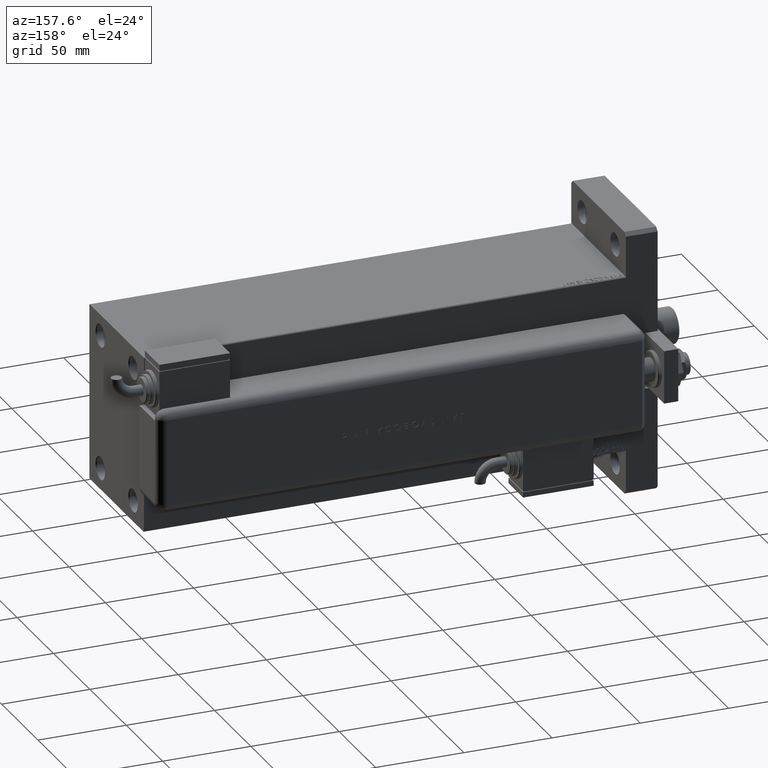
[diagram: clean part render]
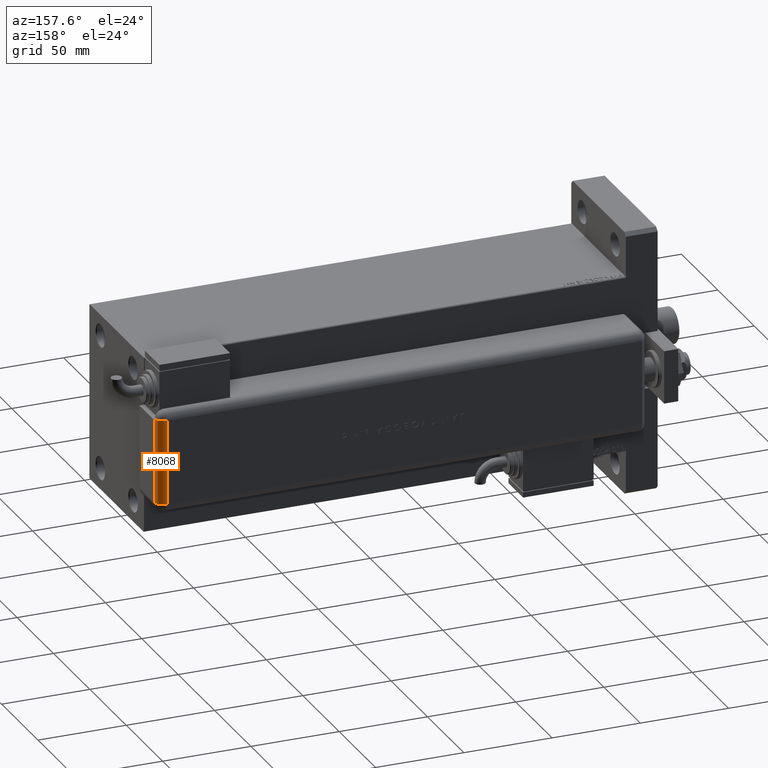
[diagram: same view with one face highlighted and labeled with its STEP entity id]
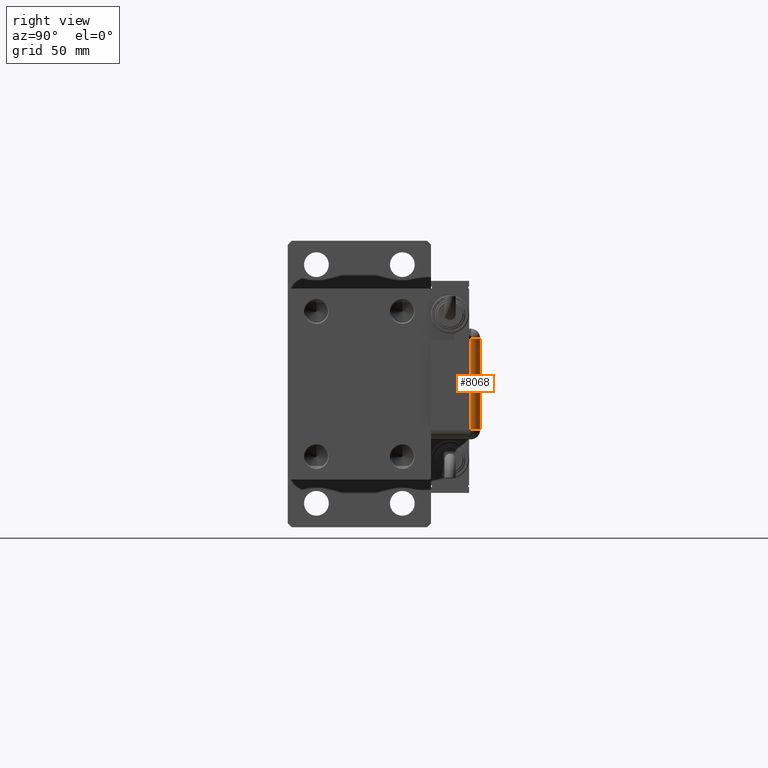
[diagram: same view with one face highlighted and labeled with its STEP entity id]
A machine part, auxiliary view. The second image highlights one B-rep face of the part: STEP entity #8068.
A second angle (right view) of the same face is appended — the face is thin or edge-on in the first view.
In plain terms, the highlighted cylindrical surface (edge-blend (fillet) strip) has radius 5 mm, axis along (0, 0, 1).
Its self-contained STEP definition (entity closure, byte-faithful):
#28 = FACE_OUTER_BOUND ( 'NONE', #4716, .T. ) ;
#668 = CIRCLE ( 'NONE', #15828, 5.000000000000000000 ) ;
#879 = ORIENTED_EDGE ( 'NONE', *, *, #10990, .T. ) ;
#2063 = LINE ( 'NONE', #7738, #30399 ) ;
#2847 = DIRECTION ( 'NONE',  ( -1.000000000000000000, -0.000000000000000000, 0.000000000000000000 ) ) ;
#3921 = CARTESIAN_POINT ( 'NONE',  ( 23.00000000000000000, 20.79999999999998295, 1.734723475976807094E-15 ) ) ;
#4716 = EDGE_LOOP ( 'NONE', ( #46331, #879, #33117, #26893, #39837, #24891 ) ) ;
#4995 = EDGE_CURVE ( 'NONE', #8281, #23888, #56757, .T. ) ;
#7738 = CARTESIAN_POINT ( 'NONE',  ( -28.99999999999999645, 21.00000000000000000, 0.004001601281286050471 ) ) ;
#8068 = ADVANCED_FACE ( 'NONE', ( #28 ), #49039, .T. ) ;
#8281 = VERTEX_POINT ( 'NONE', #21183 ) ;
#9028 = DIRECTION ( 'NONE',  ( -1.000000000000000000, 0.000000000000000000, 0.000000000000000000 ) ) ;
#9914 = CIRCLE ( 'NONE', #29111, 5.000000000000000000 ) ;
#10480 = CARTESIAN_POINT ( 'NONE',  ( 23.00000000000000000, 21.00000000000000000, 0.004001601281286050471 ) ) ;
#10598 = DIRECTION ( 'NONE',  ( 1.000000000000000000, -0.000000000000000000, -0.000000000000000000 ) ) ;
#10990 = EDGE_CURVE ( 'NONE', #47198, #35324, #18458, .T. ) ;
#11815 = DIRECTION ( 'NONE',  ( 0.000000000000000000, 0.000000000000000000, -1.000000000000000000 ) ) ;
#12167 = DIRECTION ( 'NONE',  ( 1.000000000000000000, 0.000000000000000000, 0.000000000000000000 ) ) ;
#13426 = CARTESIAN_POINT ( 'NONE',  ( -23.99999999999999645, 25.79999999999998295, 5.000000000000004441 ) ) ;
#14405 = VERTEX_POINT ( 'NONE', #46564 ) ;
#15828 = AXIS2_PLACEMENT_3D ( 'NONE', #55140, #36183, #11815 ) ;
#16566 = EDGE_CURVE ( 'NONE', #21082, #35324, #49824, .T. ) ;
#17138 = DIRECTION ( 'NONE',  ( 0.000000000000000000, 0.000000000000000000, -1.000000000000000000 ) ) ;
#18458 = CIRCLE ( 'NONE', #54797, 5.000000000000000000 ) ;
#18506 = AXIS2_PLACEMENT_3D ( 'NONE', #18684, #43058, #29121 ) ;
#18684 = CARTESIAN_POINT ( 'NONE',  ( -28.99999999999999645, 20.79999999999998295, 5.000000000000004441 ) ) ;
#19718 = EDGE_CURVE ( 'NONE', #14405, #8281, #668, .T. ) ;
#21082 = VERTEX_POINT ( 'NONE', #50960 ) ;
#21183 = CARTESIAN_POINT ( 'NONE',  ( 23.99999999999999289, 25.79999999999998295, 5.000000000000004441 ) ) ;
#21752 = VECTOR ( 'NONE', #10598, 1000.000000000000000 ) ;
#23888 = VERTEX_POINT ( 'NONE', #26266 ) ;
#24891 = ORIENTED_EDGE ( 'NONE', *, *, #19718, .F. ) ;
#26266 = CARTESIAN_POINT ( 'NONE',  ( -23.99999999999999645, 25.79999999999998295, 5.000000000000004441 ) ) ;
#26893 = ORIENTED_EDGE ( 'NONE', *, *, #27351, .T. ) ;
#27351 = EDGE_CURVE ( 'NONE', #21082, #23888, #9914, .T. ) ;
#29111 = AXIS2_PLACEMENT_3D ( 'NONE', #55712, #60463, #17138 ) ;
#29121 = DIRECTION ( 'NONE',  ( 0.000000000000000000, 0.000000000000000000, -1.000000000000000000 ) ) ;
#29491 = VECTOR ( 'NONE', #9028, 1000.000000000000000 ) ;
#30399 = VECTOR ( 'NONE', #12167, 1000.000000000000000 ) ;
#33117 = ORIENTED_EDGE ( 'NONE', *, *, #16566, .F. ) ;
#34645 = CARTESIAN_POINT ( 'NONE',  ( 23.99999999999999289, 20.79999999999998295, 0.000000000000000000 ) ) ;
#35324 = VERTEX_POINT ( 'NONE', #3921 ) ;
#36183 = DIRECTION ( 'NONE',  ( 1.000000000000000000, -0.000000000000000000, 0.000000000000000000 ) ) ;
#39837 = ORIENTED_EDGE ( 'NONE', *, *, #4995, .F. ) ;
#41128 = CARTESIAN_POINT ( 'NONE',  ( 23.00000000000000000, 20.79999999999998295, 5.000000000000004441 ) ) ;
#43058 = DIRECTION ( 'NONE',  ( 1.000000000000000000, 0.000000000000000000, 0.000000000000000000 ) ) ;
#43584 = EDGE_CURVE ( 'NONE', #47198, #14405, #2063, .T. ) ;
#46331 = ORIENTED_EDGE ( 'NONE', *, *, #43584, .F. ) ;
#46564 = CARTESIAN_POINT ( 'NONE',  ( 23.99999999999999289, 21.00000000000000000, 0.004001601281283882067 ) ) ;
#47198 = VERTEX_POINT ( 'NONE', #10480 ) ;
#49039 = CYLINDRICAL_SURFACE ( 'NONE', #18506, 5.000000000000000000 ) ;
#49824 = LINE ( 'NONE', #34645, #21752 ) ;
#50960 = CARTESIAN_POINT ( 'NONE',  ( -23.99999999999999645, 20.79999999999998295, 0.000000000000000000 ) ) ;
#54797 = AXIS2_PLACEMENT_3D ( 'NONE', #41128, #2847, #60398 ) ;
#55140 = CARTESIAN_POINT ( 'NONE',  ( 23.99999999999999289, 20.79999999999998295, 5.000000000000000000 ) ) ;
#55712 = CARTESIAN_POINT ( 'NONE',  ( -23.99999999999999645, 20.79999999999998295, 5.000000000000002665 ) ) ;
#56757 = LINE ( 'NONE', #13426, #29491 ) ;
#60398 = DIRECTION ( 'NONE',  ( 0.000000000000000000, 1.526556658859590243E-14, -1.000000000000000000 ) ) ;
#60463 = DIRECTION ( 'NONE',  ( 1.000000000000000000, -0.000000000000000000, 0.000000000000000000 ) ) ;